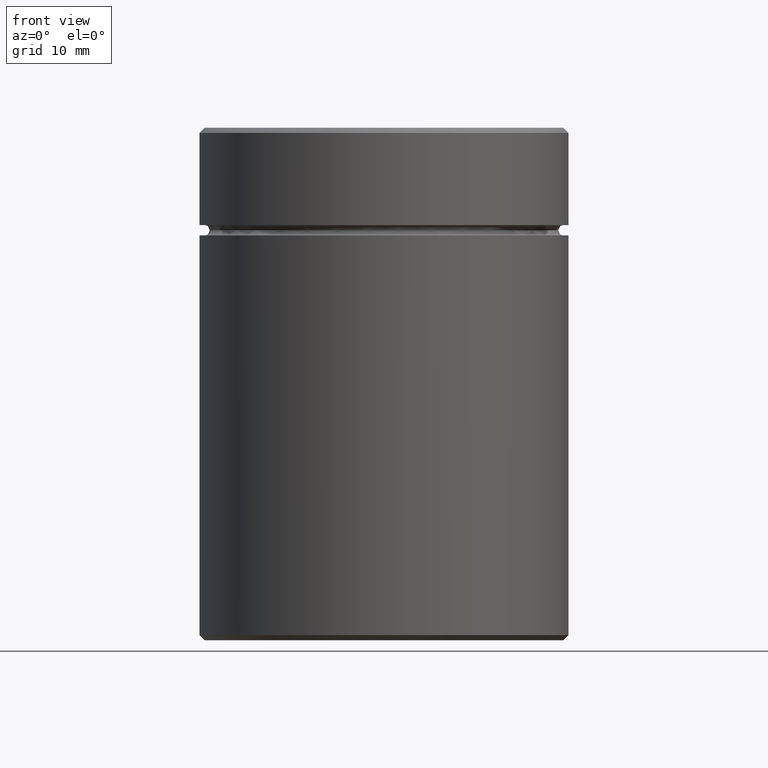
[diagram: clean part render]
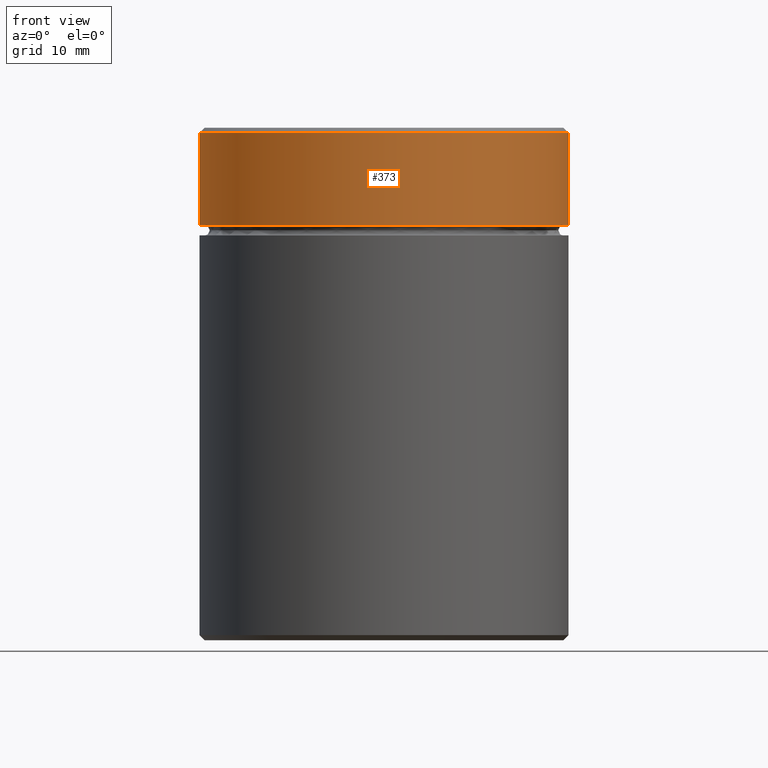
[diagram: same view with one face highlighted and labeled with its STEP entity id]
A machine part, front view. The second image highlights one B-rep face of the part: STEP entity #373.
In plain terms, the highlighted cylindrical surface (partial cylindrical patch) has radius 18 mm, axis along (-0, -0, 1).
Its self-contained STEP definition (entity closure, byte-faithful):
#42 = CARTESIAN_POINT ( 'NONE',  ( 0.000000000000000000, 0.000000000000000000, -9.500000000000000000 ) ) ;
#57 = ORIENTED_EDGE ( 'NONE', *, *, #75, .T. ) ;
#68 = VERTEX_POINT ( 'NONE', #97 ) ;
#75 = EDGE_CURVE ( 'NONE', #293, #396, #393, .T. ) ;
#90 = EDGE_CURVE ( 'NONE', #203, #293, #146, .T. ) ;
#97 = CARTESIAN_POINT ( 'NONE',  ( -18.00000000000000000, 2.204364238465235428E-15, -0.5000000000000108802 ) ) ;
#98 = EDGE_CURVE ( 'NONE', #203, #68, #357, .T. ) ;
#103 = ORIENTED_EDGE ( 'NONE', *, *, #90, .T. ) ;
#110 = ORIENTED_EDGE ( 'NONE', *, *, #366, .T. ) ;
#118 = CARTESIAN_POINT ( 'NONE',  ( 0.000000000000000000, 0.000000000000000000, 0.000000000000000000 ) ) ;
#128 = DIRECTION ( 'NONE',  ( 1.000000000000000000, 0.000000000000000000, 0.000000000000000000 ) ) ;
#131 = CYLINDRICAL_SURFACE ( 'NONE', #360, 18.00000000000000000 ) ;
#146 = CIRCLE ( 'NONE', #503, 18.00000000000000000 ) ;
#159 = DIRECTION ( 'NONE',  ( 0.000000000000000000, 0.000000000000000000, -1.000000000000000000 ) ) ;
#163 = CARTESIAN_POINT ( 'NONE',  ( 0.000000000000000000, 0.000000000000000000, -0.5000000000000108802 ) ) ;
#172 = CIRCLE ( 'NONE', #291, 18.00000000000000000 ) ;
#181 = DIRECTION ( 'NONE',  ( 1.000000000000000000, 0.000000000000000000, 0.000000000000000000 ) ) ;
#203 = VERTEX_POINT ( 'NONE', #282 ) ;
#210 = CARTESIAN_POINT ( 'NONE',  ( -18.00000000000000000, 2.204364238465235428E-15, 0.000000000000000000 ) ) ;
#219 = DIRECTION ( 'NONE',  ( -0.000000000000000000, -0.000000000000000000, 1.000000000000000000 ) ) ;
#254 = CARTESIAN_POINT ( 'NONE',  ( 18.00000000000000000, 0.000000000000000000, -0.5000000000000108802 ) ) ;
#282 = CARTESIAN_POINT ( 'NONE',  ( -18.00000000000000000, 2.204364238465235428E-15, -9.500000000000000000 ) ) ;
#291 = AXIS2_PLACEMENT_3D ( 'NONE', #163, #159, #128 ) ;
#293 = VERTEX_POINT ( 'NONE', #559 ) ;
#328 = EDGE_LOOP ( 'NONE', ( #342, #103, #57, #110 ) ) ;
#333 = DIRECTION ( 'NONE',  ( -0.000000000000000000, -0.000000000000000000, 1.000000000000000000 ) ) ;
#342 = ORIENTED_EDGE ( 'NONE', *, *, #98, .F. ) ;
#343 = CARTESIAN_POINT ( 'NONE',  ( 18.00000000000000000, 0.000000000000000000, 0.000000000000000000 ) ) ;
#357 = LINE ( 'NONE', #210, #513 ) ;
#360 = AXIS2_PLACEMENT_3D ( 'NONE', #118, #333, #466 ) ;
#366 = EDGE_CURVE ( 'NONE', #396, #68, #172, .T. ) ;
#373 = ADVANCED_FACE ( 'NONE', ( #522 ), #131, .T. ) ;
#390 = VECTOR ( 'NONE', #457, 1000.000000000000000 ) ;
#393 = LINE ( 'NONE', #343, #390 ) ;
#396 = VERTEX_POINT ( 'NONE', #254 ) ;
#443 = DIRECTION ( 'NONE',  ( -0.000000000000000000, -0.000000000000000000, 1.000000000000000000 ) ) ;
#457 = DIRECTION ( 'NONE',  ( -0.000000000000000000, -0.000000000000000000, 1.000000000000000000 ) ) ;
#466 = DIRECTION ( 'NONE',  ( 1.000000000000000000, 0.000000000000000000, 0.000000000000000000 ) ) ;
#503 = AXIS2_PLACEMENT_3D ( 'NONE', #42, #219, #181 ) ;
#513 = VECTOR ( 'NONE', #443, 1000.000000000000000 ) ;
#522 = FACE_OUTER_BOUND ( 'NONE', #328, .T. ) ;
#559 = CARTESIAN_POINT ( 'NONE',  ( 18.00000000000000000, 0.000000000000000000, -9.500000000000000000 ) ) ;